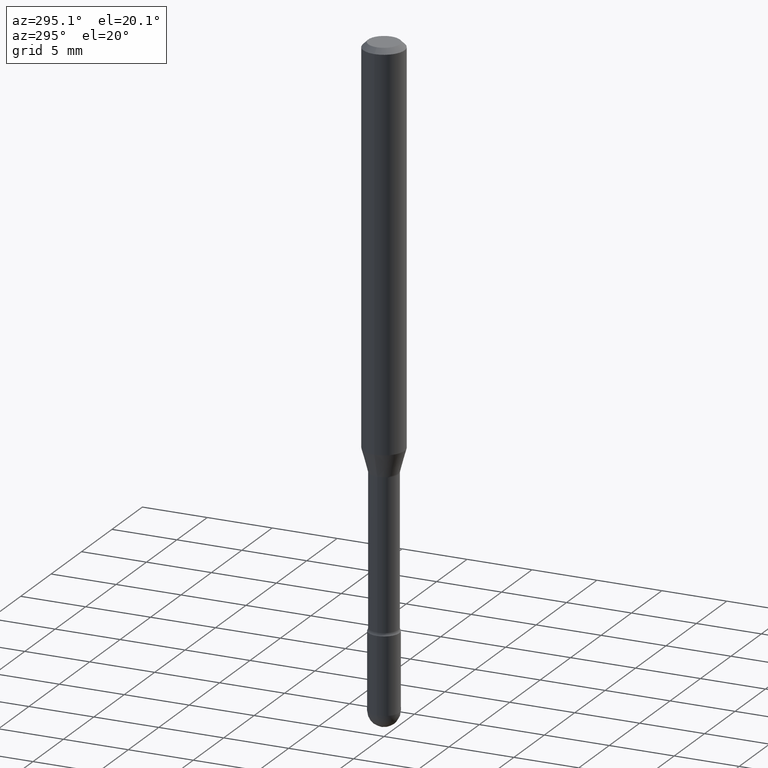
[diagram: clean part render]
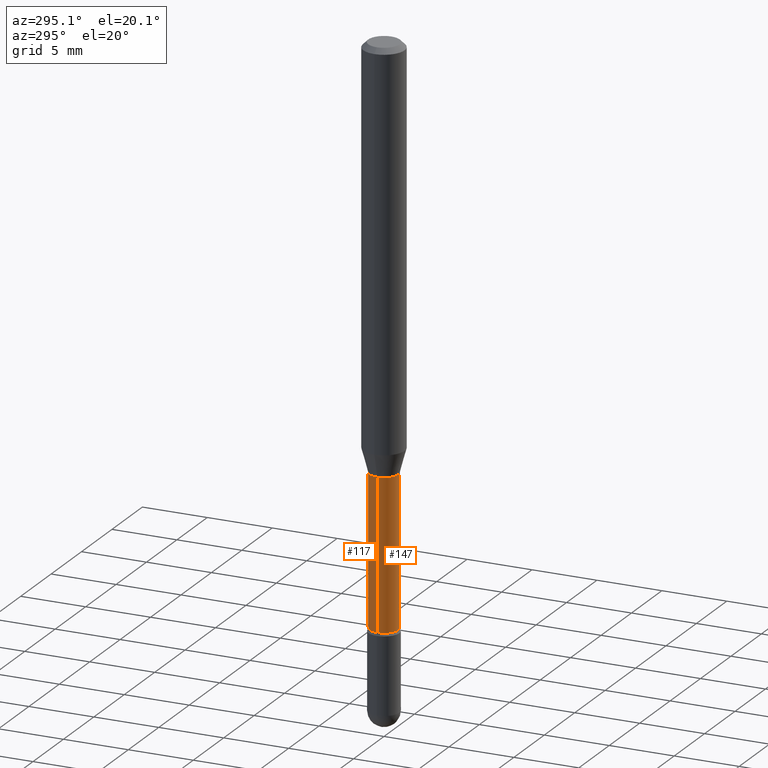
[diagram: same view with one multi-face feature highlighted, each face labeled with its STEP entity id]
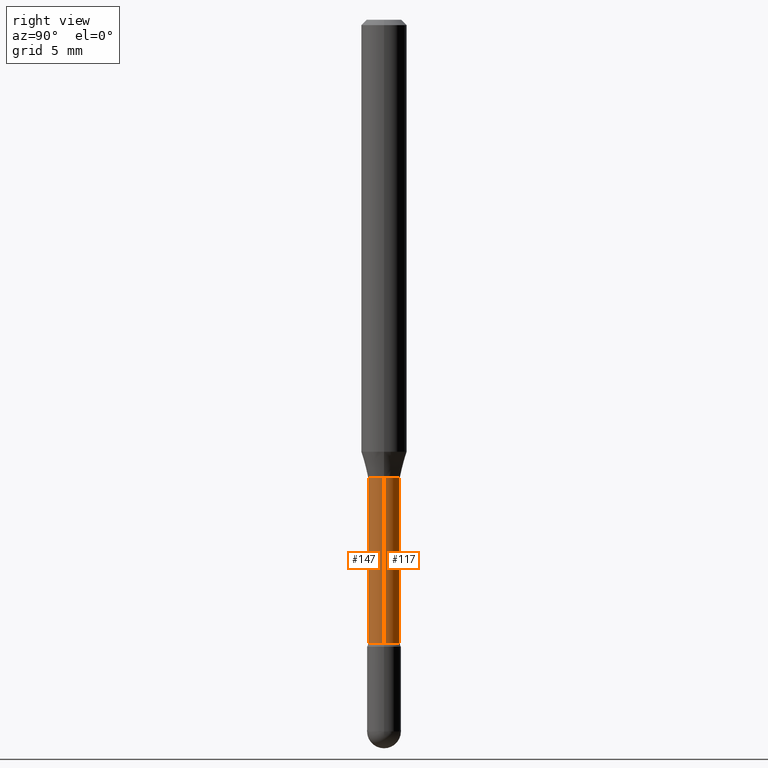
[diagram: same view with one multi-face feature highlighted, each face labeled with its STEP entity id]
A machine part, auxiliary view. The highlighted faces form ONE feature: a constant-radius fillet chain: 2 tangent blend faces with common blend radius 1.11 mm. The faces share edges in the B-rep.
A second angle (right view) of the same feature is appended — it is thin or edge-on in the first view.
Their STEP definitions:
[1] entity #117 (Cylinder):
#34 = EDGE_CURVE ( 'NONE', #548, #375, #106, .T. ) ;
#62 = CARTESIAN_POINT ( 'NONE',  ( 3.076338101710126374E-29, -4.392195495165068238E-15, -1.257974787463810973 ) ) ;
#63 = CARTESIAN_POINT ( 'NONE',  ( -0.04370000000000000967, -4.874775238218270843E-15, -1.257974787463810973 ) ) ;
#71 = EDGE_CURVE ( 'NONE', #239, #548, #519, .T. ) ;
#74 = AXIS2_PLACEMENT_3D ( 'NONE', #162, #366, #241 ) ;
#84 = CARTESIAN_POINT ( 'NONE',  ( 0.04370000000000000967, -4.697350964179957317E-15, -1.257974787463810973 ) ) ;
#89 = DIRECTION ( 'NONE',  ( -2.445468806185136877E-29, 3.491481338843145188E-15, 1.000000000000000000 ) ) ;
#101 = VECTOR ( 'NONE', #153, 39.37007874015748143 ) ;
#106 = LINE ( 'NONE', #278, #101 ) ;
#117 = ADVANCED_FACE ( 'NONE', ( #280 ), #502, .T. ) ;
#124 = EDGE_LOOP ( 'NONE', ( #503, #146, #132, #441 ) ) ;
#132 = ORIENTED_EDGE ( 'NONE', *, *, #335, .F. ) ;
#146 = ORIENTED_EDGE ( 'NONE', *, *, #34, .T. ) ;
#153 = DIRECTION ( 'NONE',  ( -2.445468806185136877E-29, 3.491481338843145188E-15, 1.000000000000000000 ) ) ;
#158 = VERTEX_POINT ( 'NONE', #84 ) ;
#162 = CARTESIAN_POINT ( 'NONE',  ( 4.187310283291023133E-29, -5.978369332325802035E-15, -1.712273030308291144 ) ) ;
#202 = CARTESIAN_POINT ( 'NONE',  ( -0.04369999999999994722, -5.673149584409622388E-15, -1.712273030308291144 ) ) ;
#232 = AXIS2_PLACEMENT_3D ( 'NONE', #378, #514, #290 ) ;
#233 = CIRCLE ( 'NONE', #478, 0.04370000000000000967 ) ;
#239 = VERTEX_POINT ( 'NONE', #254 ) ;
#241 = DIRECTION ( 'NONE',  ( 1.000000000000000000, -6.982962677686272233E-15, 0.000000000000000000 ) ) ;
#250 = VECTOR ( 'NONE', #89, 39.37007874015748143 ) ;
#254 = CARTESIAN_POINT ( 'NONE',  ( 0.04369999999999994722, -6.283524801340691903E-15, -1.712273030308291144 ) ) ;
#270 = CARTESIAN_POINT ( 'NONE',  ( 0.04369999999999998191, -3.051554690148880436E-16, 4.780733988912481833E-16 ) ) ;
#272 = EDGE_CURVE ( 'NONE', #239, #158, #440, .T. ) ;
#278 = CARTESIAN_POINT ( 'NONE',  ( -0.04369999999999998191, 3.105071755271653784E-16, 4.780733988912439432E-16 ) ) ;
#279 = DIRECTION ( 'NONE',  ( 1.000000000000000000, -6.982962677686261977E-15, 0.000000000000000000 ) ) ;
#280 = FACE_OUTER_BOUND ( 'NONE', #124, .T. ) ;
#290 = DIRECTION ( 'NONE',  ( 1.000000000000000000, -6.982962677686266711E-15, 4.858289198259664893E-29 ) ) ;
#335 = EDGE_CURVE ( 'NONE', #158, #375, #233, .T. ) ;
#366 = DIRECTION ( 'NONE',  ( -2.445468806185136597E-29, 3.491481338843145583E-15, 1.000000000000000000 ) ) ;
#375 = VERTEX_POINT ( 'NONE', #63 ) ;
#378 = CARTESIAN_POINT ( 'NONE',  ( -1.169113584055446105E-44, 1.669184350826100908E-30, 4.780733988912460139E-16 ) ) ;
#414 = DIRECTION ( 'NONE',  ( -2.445468806185136597E-29, 3.491481338843145583E-15, 1.000000000000000000 ) ) ;
#440 = LINE ( 'NONE', #270, #250 ) ;
#441 = ORIENTED_EDGE ( 'NONE', *, *, #272, .F. ) ;
#478 = AXIS2_PLACEMENT_3D ( 'NONE', #62, #414, #279 ) ;
#502 = CYLINDRICAL_SURFACE ( 'NONE', #232, 0.04369999999999998191 ) ;
#503 = ORIENTED_EDGE ( 'NONE', *, *, #71, .T. ) ;
#514 = DIRECTION ( 'NONE',  ( -2.445468806185136597E-29, 3.491481338843145583E-15, 1.000000000000000000 ) ) ;
#519 = CIRCLE ( 'NONE', #74, 0.04369999999999994722 ) ;
#548 = VERTEX_POINT ( 'NONE', #202 ) ;
[2] entity #147 (Cylinder):
#5 = CIRCLE ( 'NONE', #421, 0.04370000000000000967 ) ;
#34 = EDGE_CURVE ( 'NONE', #548, #375, #106, .T. ) ;
#63 = CARTESIAN_POINT ( 'NONE',  ( -0.04370000000000000967, -4.874775238218270843E-15, -1.257974787463810973 ) ) ;
#69 = DIRECTION ( 'NONE',  ( -2.445468806185136597E-29, 3.491481338843145583E-15, 1.000000000000000000 ) ) ;
#84 = CARTESIAN_POINT ( 'NONE',  ( 0.04370000000000000967, -4.697350964179957317E-15, -1.257974787463810973 ) ) ;
#89 = DIRECTION ( 'NONE',  ( -2.445468806185136877E-29, 3.491481338843145188E-15, 1.000000000000000000 ) ) ;
#101 = VECTOR ( 'NONE', #153, 39.37007874015748143 ) ;
#106 = LINE ( 'NONE', #278, #101 ) ;
#144 = EDGE_LOOP ( 'NONE', ( #305, #404, #439, #513 ) ) ;
#147 = ADVANCED_FACE ( 'NONE', ( #385 ), #163, .T. ) ;
#153 = DIRECTION ( 'NONE',  ( -2.445468806185136877E-29, 3.491481338843145188E-15, 1.000000000000000000 ) ) ;
#158 = VERTEX_POINT ( 'NONE', #84 ) ;
#163 = CYLINDRICAL_SURFACE ( 'NONE', #285, 0.04369999999999998191 ) ;
#166 = DIRECTION ( 'NONE',  ( 1.000000000000000000, -6.982962677686266711E-15, 4.858289198259664893E-29 ) ) ;
#202 = CARTESIAN_POINT ( 'NONE',  ( -0.04369999999999994722, -5.673149584409622388E-15, -1.712273030308291144 ) ) ;
#239 = VERTEX_POINT ( 'NONE', #254 ) ;
#245 = DIRECTION ( 'NONE',  ( 1.000000000000000000, -6.982962677686261977E-15, 0.000000000000000000 ) ) ;
#250 = VECTOR ( 'NONE', #89, 39.37007874015748143 ) ;
#254 = CARTESIAN_POINT ( 'NONE',  ( 0.04369999999999994722, -6.283524801340691903E-15, -1.712273030308291144 ) ) ;
#269 = CARTESIAN_POINT ( 'NONE',  ( 4.187310283291023133E-29, -5.978369332325802035E-15, -1.712273030308291144 ) ) ;
#270 = CARTESIAN_POINT ( 'NONE',  ( 0.04369999999999998191, -3.051554690148880436E-16, 4.780733988912481833E-16 ) ) ;
#272 = EDGE_CURVE ( 'NONE', #239, #158, #440, .T. ) ;
#278 = CARTESIAN_POINT ( 'NONE',  ( -0.04369999999999998191, 3.105071755271653784E-16, 4.780733988912439432E-16 ) ) ;
#285 = AXIS2_PLACEMENT_3D ( 'NONE', #388, #346, #166 ) ;
#288 = CIRCLE ( 'NONE', #434, 0.04369999999999994722 ) ;
#305 = ORIENTED_EDGE ( 'NONE', *, *, #34, .F. ) ;
#346 = DIRECTION ( 'NONE',  ( -2.445468806185136597E-29, 3.491481338843145583E-15, 1.000000000000000000 ) ) ;
#350 = DIRECTION ( 'NONE',  ( 1.000000000000000000, -6.982962677686272233E-15, 0.000000000000000000 ) ) ;
#375 = VERTEX_POINT ( 'NONE', #63 ) ;
#385 = FACE_OUTER_BOUND ( 'NONE', #144, .T. ) ;
#388 = CARTESIAN_POINT ( 'NONE',  ( -1.169113584055446105E-44, 1.669184350826100908E-30, 4.780733988912460139E-16 ) ) ;
#400 = EDGE_CURVE ( 'NONE', #375, #158, #5, .T. ) ;
#402 = DIRECTION ( 'NONE',  ( -2.445468806185136597E-29, 3.491481338843145583E-15, 1.000000000000000000 ) ) ;
#404 = ORIENTED_EDGE ( 'NONE', *, *, #493, .T. ) ;
#421 = AXIS2_PLACEMENT_3D ( 'NONE', #423, #69, #245 ) ;
#423 = CARTESIAN_POINT ( 'NONE',  ( 3.076338101710126374E-29, -4.392195495165068238E-15, -1.257974787463810973 ) ) ;
#434 = AXIS2_PLACEMENT_3D ( 'NONE', #269, #402, #350 ) ;
#439 = ORIENTED_EDGE ( 'NONE', *, *, #272, .T. ) ;
#440 = LINE ( 'NONE', #270, #250 ) ;
#493 = EDGE_CURVE ( 'NONE', #548, #239, #288, .T. ) ;
#513 = ORIENTED_EDGE ( 'NONE', *, *, #400, .F. ) ;
#548 = VERTEX_POINT ( 'NONE', #202 ) ;